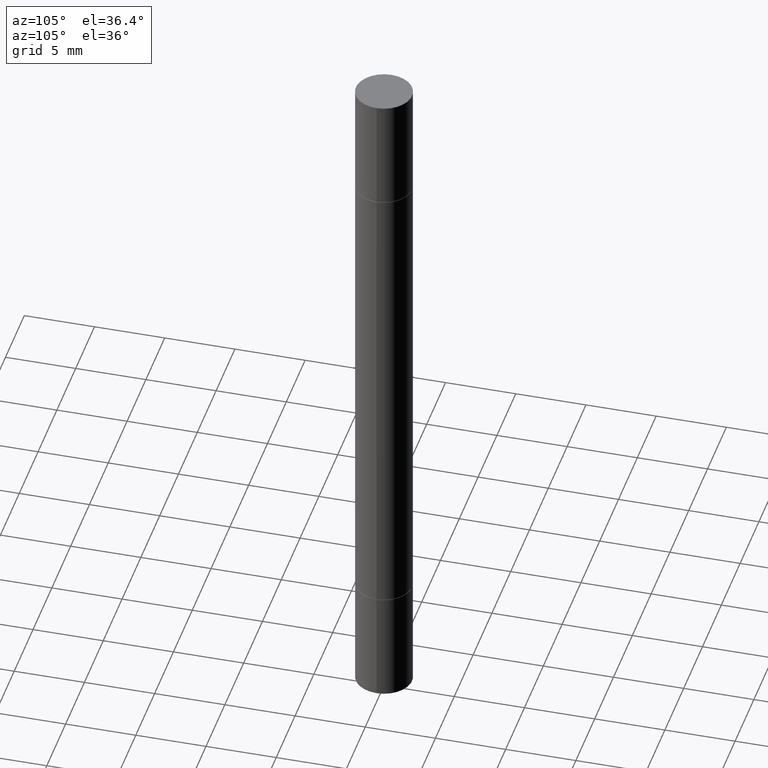
[diagram: clean part render]
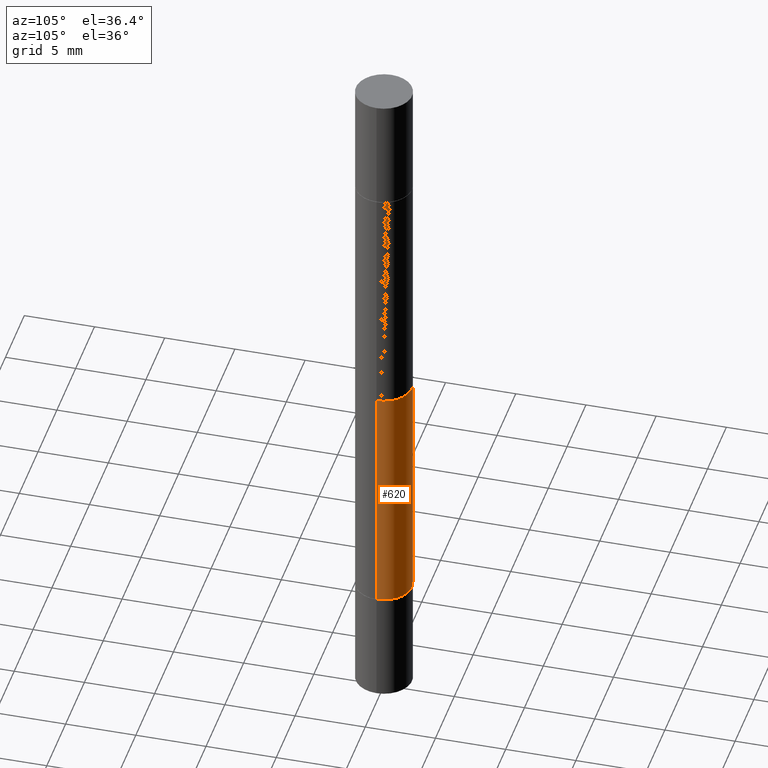
[diagram: same view with one face highlighted and labeled with its STEP entity id]
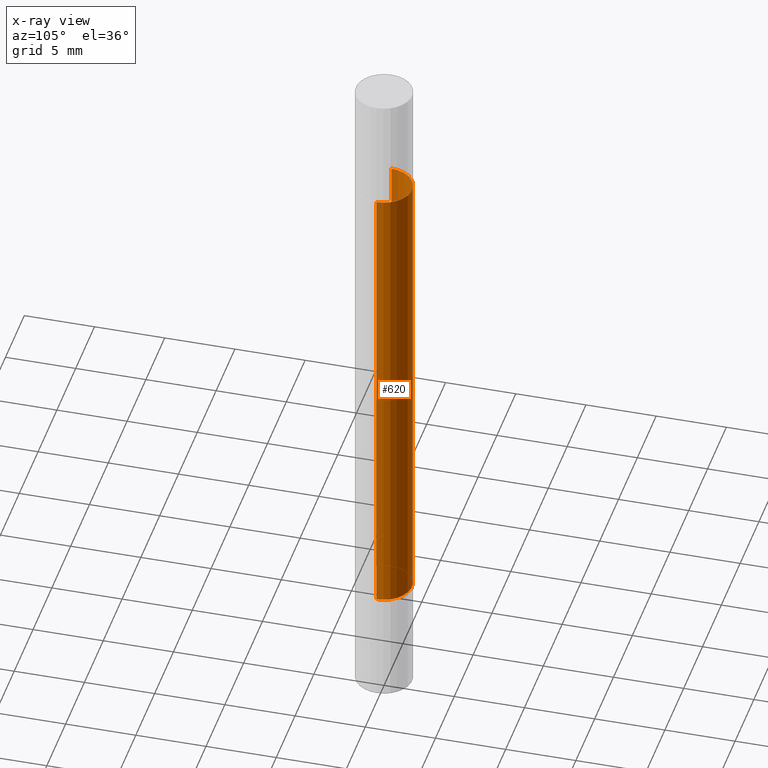
[diagram: x-ray of the same camera — body ghosted, the highlighted face saturated]
A machine part, auxiliary view. The second image highlights one B-rep face of the part: STEP entity #620.
The next image is the same camera in x-ray: the body ghosted, the highlighted face saturated — about 0% of this face is hidden behind the body in this view.
In plain terms, the highlighted cylindrical surface (edge-blend (fillet) strip) has radius 2.0002 mm, axis along (-0, -0, -1).
Its self-contained STEP definition (entity closure, byte-faithful):
#16 = ORIENTED_EDGE ( 'NONE', *, *, #133, .F. ) ;
#17 = CARTESIAN_POINT ( 'NONE',  ( 0.07874999999999997280, -6.319581223306091410E-15, -1.652499999999999858 ) ) ;
#20 = CARTESIAN_POINT ( 'NONE',  ( 0.000000000000000000, -6.874367895326177521E-15, -1.968499999999999694 ) ) ;
#30 = DIRECTION ( 'NONE',  ( -2.445468806185136597E-29, 3.491481338843145583E-15, 1.000000000000000000 ) ) ;
#36 = CIRCLE ( 'NONE', #525, 0.07874999999999997280 ) ;
#38 = ORIENTED_EDGE ( 'NONE', *, *, #99, .T. ) ;
#43 = CIRCLE ( 'NONE', #256, 0.07874999999999997280 ) ;
#69 = ORIENTED_EDGE ( 'NONE', *, *, #376, .F. ) ;
#99 = EDGE_CURVE ( 'NONE', #555, #543, #453, .T. ) ;
#103 = VECTOR ( 'NONE', #536, 39.37007874015748143 ) ;
#119 = ORIENTED_EDGE ( 'NONE', *, *, #462, .T. ) ;
#133 = EDGE_CURVE ( 'NONE', #555, #240, #43, .T. ) ;
#134 = EDGE_LOOP ( 'NONE', ( #69, #16, #38, #119 ) ) ;
#145 = FACE_OUTER_BOUND ( 'NONE', #134, .T. ) ;
#240 = VERTEX_POINT ( 'NONE', #672 ) ;
#256 = AXIS2_PLACEMENT_3D ( 'NONE', #674, #623, #511 ) ;
#308 = DIRECTION ( 'NONE',  ( -2.445468806185136877E-29, -3.492890411551753071E-15, -1.000000000000000000 ) ) ;
#355 = CYLINDRICAL_SURFACE ( 'NONE', #631, 0.07874999999999987566 ) ;
#376 = EDGE_CURVE ( 'NONE', #240, #495, #428, .T. ) ;
#394 = DIRECTION ( 'NONE',  ( 1.000000000000000000, -6.982962677686264344E-15, 0.000000000000000000 ) ) ;
#407 = CARTESIAN_POINT ( 'NONE',  ( 0.07874999999999987566, -7.424276206193971655E-15, -1.968499999999999694 ) ) ;
#428 = LINE ( 'NONE', #476, #103 ) ;
#445 = CARTESIAN_POINT ( 'NONE',  ( -0.07874999999999997280, -2.896226290431854020E-15, -1.652499999999999858 ) ) ;
#453 = LINE ( 'NONE', #407, #610 ) ;
#462 = EDGE_CURVE ( 'NONE', #543, #495, #36, .T. ) ;
#476 = CARTESIAN_POINT ( 'NONE',  ( -0.07874999999999987566, -6.334103678001671209E-15, -1.968499999999999694 ) ) ;
#493 = CARTESIAN_POINT ( 'NONE',  ( 4.041137202220937598E-29, -5.769672912438298064E-15, -1.652499999999999858 ) ) ;
#495 = VERTEX_POINT ( 'NONE', #445 ) ;
#511 = DIRECTION ( 'NONE',  ( 1.000000000000000000, -6.982962677686267499E-15, 0.000000000000000000 ) ) ;
#525 = AXIS2_PLACEMENT_3D ( 'NONE', #493, #30, #394 ) ;
#536 = DIRECTION ( 'NONE',  ( -2.445468806185136877E-29, -3.492890411551753071E-15, -1.000000000000000000 ) ) ;
#543 = VERTEX_POINT ( 'NONE', #17 ) ;
#555 = VERTEX_POINT ( 'NONE', #605 ) ;
#563 = DIRECTION ( 'NONE',  ( 1.000000000000000000, -6.982962677686273021E-15, 0.000000000000000000 ) ) ;
#605 = CARTESIAN_POINT ( 'NONE',  ( 0.07874999999999997280, -1.652274801104699758E-15, -0.3159999999999998366 ) ) ;
#610 = VECTOR ( 'NONE', #308, 39.37007874015748143 ) ;
#620 = ADVANCED_FACE ( 'NONE', ( #145 ), #355, .T. ) ;
#623 = DIRECTION ( 'NONE',  ( 2.445468806185136597E-29, 3.492890411551752677E-15, 1.000000000000000000 ) ) ;
#631 = AXIS2_PLACEMENT_3D ( 'NONE', #20, #657, #563 ) ;
#657 = DIRECTION ( 'NONE',  ( -2.445468806185136597E-29, -3.492890411551752677E-15, -1.000000000000000000 ) ) ;
#672 = CARTESIAN_POINT ( 'NONE',  ( -0.07874999999999997280, -5.621022729123983254E-16, -0.3159999999999998366 ) ) ;
#674 = CARTESIAN_POINT ( 'NONE',  ( 4.041137202220937598E-29, -1.102366490236907793E-15, -0.3159999999999998366 ) ) ;